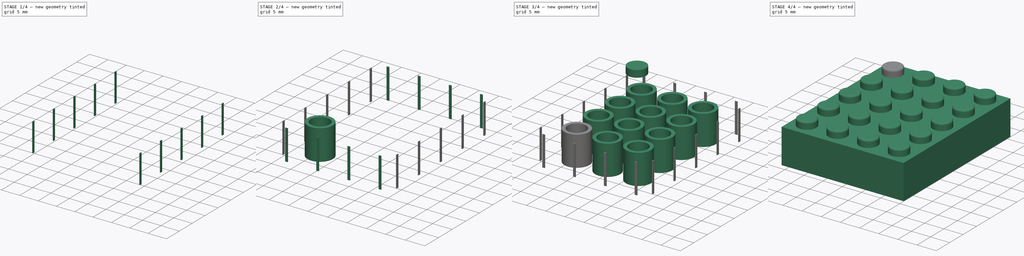
[diagram: build sequence overview — one tinted view per stage of 4, left to right]
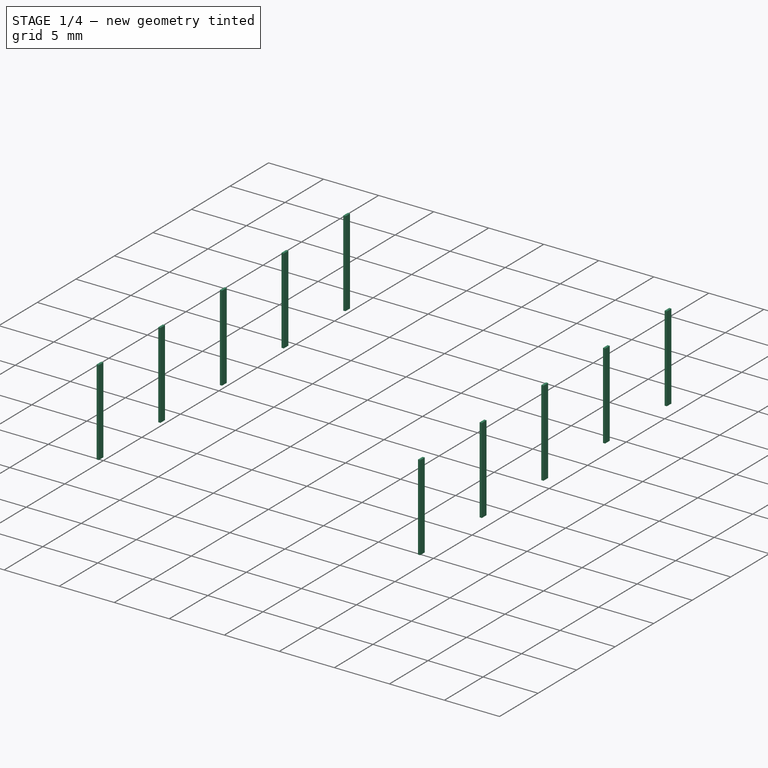
[diagram: stage 1 of 4 — iso view after this stage's code; geometry added in this stage tinted green]
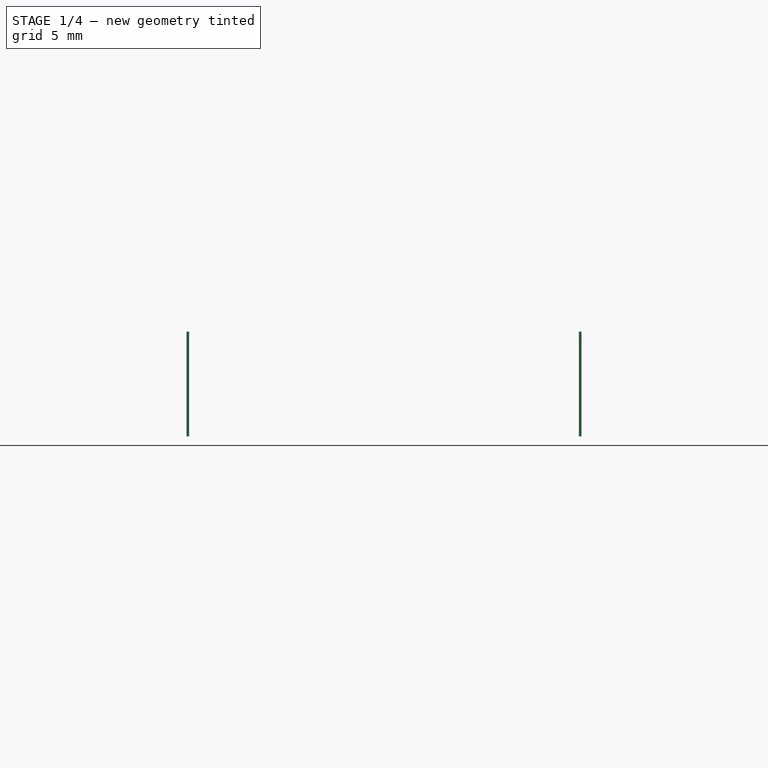
[diagram: stage 1 of 4 — front view after this stage's code; geometry added in this stage tinted green]
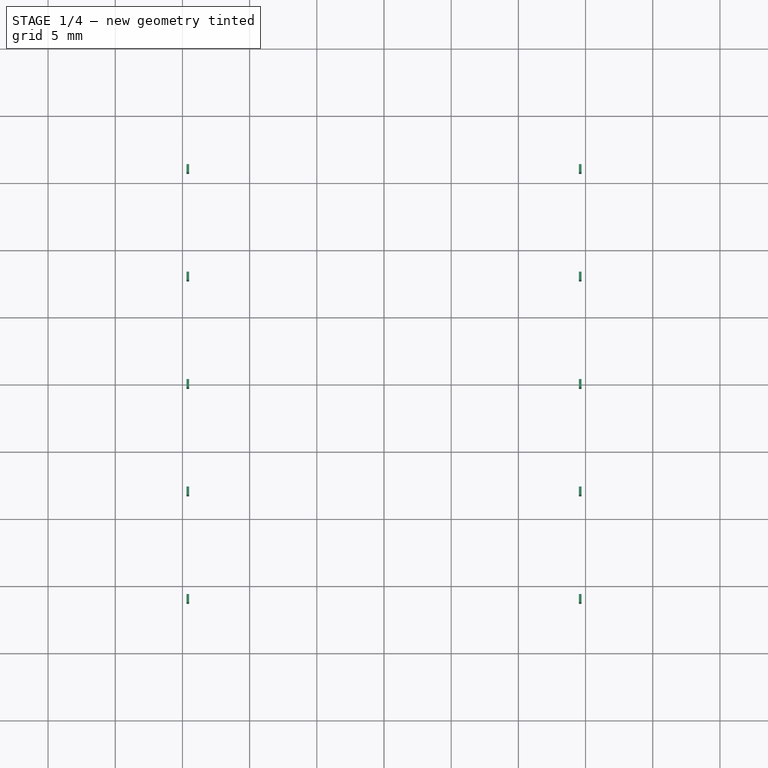
[diagram: stage 1 of 4 — top view after this stage's code; geometry added in this stage tinted green]
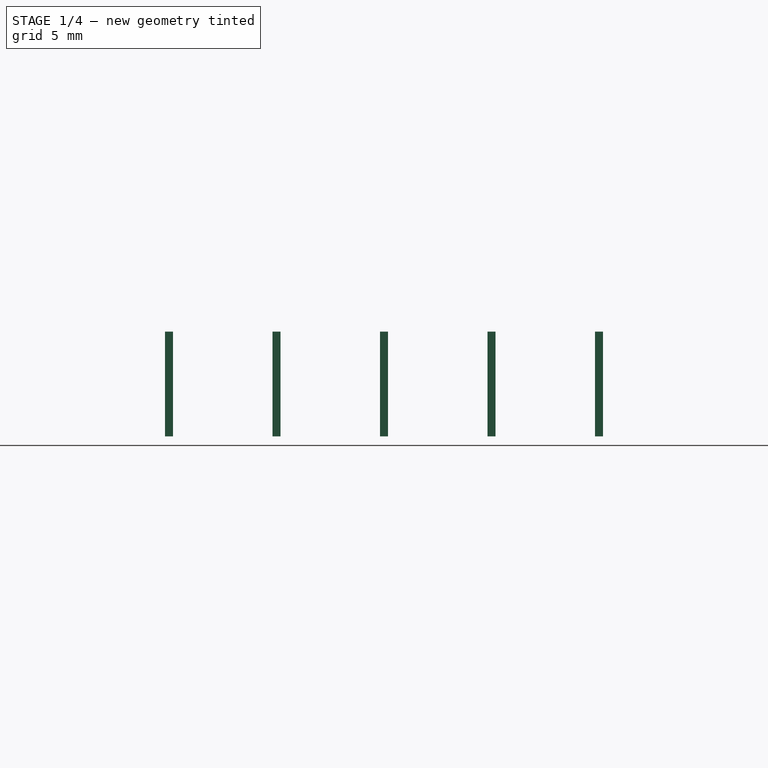
[diagram: stage 1 of 4 — right view after this stage's code; geometry added in this stage tinted green]
FCSTD DOCUMENT  (FreeCAD 0.21RUnknown)
Label: parametric_brick
License: All rights reserved
LicenseURL: http://en.wikipedia.org/wiki/All_rights_reserved
objects: Part::FeaturePython×12, Sketcher::SketchObject×5, Part::Extrusion×5, Spreadsheet::Sheet×1, Part::Thickness×1, Part::Fillet×1, Part::Compound×1
note: 25 computed .brp shape members not serialized (recipe doc carries the construction recipe); baked Part::Feature solids carry a one-line shape summary decoded from their .brp

FEATURE [Sketcher::SketchObject] Sketch
  FullyConstrained = true
  expr: Constraints[10] = Spreadsheet.Length
  expr: Constraints[11] = Spreadsheet.Width
  sketch-geometry (5):
    g0: LineSegment StartX=-15.9 StartY=19.9 StartZ=0 EndX=-15.9 EndY=-19.9 EndZ=0
    g1: LineSegment StartX=-15.9 StartY=-19.9 StartZ=0 EndX=15.9 EndY=-19.9 EndZ=0
    g2: LineSegment StartX=15.9 StartY=-19.9 StartZ=0 EndX=15.9 EndY=19.9 EndZ=0
    g3: LineSegment StartX=15.9 StartY=19.9 StartZ=0 EndX=-15.9 EndY=19.9 EndZ=0
    g4: GeomPoint X=0 Y=0 Z=0
  constraints (12):
    c: Coincident(g0,g1)
    c: Coincident(g1,g2)
    c: Coincident(g2,g3)
    c: Coincident(g3,g0)
    c: Horizontal(g1)
    c: Horizontal(g3)
    c: Vertical(g0)
    c: Vertical(g2)
    c: Symmetric(g1,g0,g4)
    c: Coincident(g4,g-1)
    c: DistanceX(g3,g3) = 31.8
    c: DistanceY(g2,g2) = 39.8
FEATURE [Spreadsheet::Sheet] Spreadsheet
  cells = A1='LengthUnits; B1(LengthUnits)=4; C1='Length; D1(Length)==LengthUnits * HorizonSpacing - LengthAdjustment; A2='HeightUnits; B2(HeightUnits)=3; C2='Height; D2(Height)==HeightUnits * VerticalSpacing; A3='WidthUnits; B3(WidthUnits)=5; C3='Width; D3(Width)==WidthUnits * HorizonSpacing - LengthAdjustment; A4='HorizonSpacing; B4(HorizonSpacing)=8; C4='StudPlacement; D4(StudPlacement)=3.9; A5='VerticalSpacing; B5(VerticalSpacing)=3; C5='StudDiameter; D5(StudDiameter)=4.8; A6='LengthAdjustment; B6(LengthAdjustment)=0.2; C6='StudHeight; D6(StudHeight)=1.8; A7='Wall; B7(Wall)=1.2; C7='TubeInner; D7(TubeInner)=4.8; A8='NubWidth; B8(NubWidth)=0.6; C8='TubeOuter; D8(TubeOuter)=6.5; A9='NubHeight; B9(NubHeight)=0.2; C9='TubePlacement; D9(TubePlacement)=7.9; A10='NubCenterToTopLeft; B10(NubCenterToTopLeft)=3.9; B12='Width; C12='Length; A13='2x2; B13=2; C13=2; A14='2x3; B14=2; C14=3; A15='3x3; B15=3; C15=3
FEATURE [Part::Extrusion] Extrude
  Base = -> Sketch
  Dir = (0,0,1)
  DirMode = 2
  FaceMakerClass = Part::FaceMakerBullseye
  LengthFwd = 9
  LengthRev = 0
  Solid = true
  Symmetric = false
  expr: LengthFwd = Spreadsheet.Height
FEATURE [Part::Thickness] Thickness
  Faces = -> Extrude [Face5]
  Intersection = false
  Join = 0
  Mode = 0
  SelfIntersection = false
  Value = -1.2
  expr: Value = -Spreadsheet.Wall
FEATURE [Sketcher::SketchObject] Sketch004
  ExternalGeometry = -> [Thickness]
  FullyConstrained = true
  MapMode = 5
  Placement = pos=(0,0,7.8) rot=(1,0,0;3.14159rad)
  Support = -> [Thickness]
  expr: Constraints[10] = Spreadsheet.Wall
  expr: Constraints[11] = Spreadsheet.NubHeight
  expr: Constraints[12] = Spreadsheet.NubWidth
  expr: Constraints[25] = Spreadsheet.Wall
  expr: Constraints[9] = Spreadsheet.NubCenterToTopLeft
  sketch-geometry (10):
    g0: LineSegment StartX=-14.7 StartY=16.3 StartZ=0 EndX=-14.7 EndY=15.7 EndZ=0
    g1: LineSegment StartX=-14.7 StartY=15.7 StartZ=0 EndX=-14.5 EndY=15.7 EndZ=0
    g2: LineSegment StartX=-14.5 StartY=15.7 StartZ=0 EndX=-14.5 EndY=16.3 EndZ=0
    g3: LineSegment StartX=-14.5 StartY=16.3 StartZ=0 EndX=-14.7 EndY=16.3 EndZ=0
    g4: GeomPoint X=-14.6 Y=16 Z=0
    g5: LineSegment StartX=14.5 StartY=16.3 StartZ=0 EndX=14.5 EndY=15.7 EndZ=0
    g6: LineSegment StartX=14.5 StartY=15.7 StartZ=0 EndX=14.7 EndY=15.7 EndZ=0
    g7: LineSegment StartX=14.7 StartY=15.7 StartZ=0 EndX=14.7 EndY=16.3 EndZ=0
    g8: LineSegment StartX=14.7 StartY=16.3 StartZ=0 EndX=14.5 EndY=16.3 EndZ=0
    g9: GeomPoint X=14.6 Y=16 Z=0
  constraints (26):
    c: Coincident(g0,g1)
    c: Coincident(g1,g2)
    c: Coincident(g2,g3)
    c: Coincident(g3,g0)
    c: Horizontal(g1)
    c: Horizontal(g3)
    c: Vertical(g0)
    c: Vertical(g2)
    c: Symmetric(g1,g0,g4)
    c: DistanceY(g4,g-3) = 3.9
    c: DistanceX(g-3,g0) = 1.2
    c: DistanceX(g3,g3) = 0.2
    c: DistanceY(g2,g2) = 0.6
    c: Coincident(g5,g6)
    c: Coincident(g6,g7)
    c: Coincident(g7,g8)
    c: Coincident(g8,g5)
    c: Horizontal(g6)
    c: Horizontal(g8)
    c: Vertical(g5)
    c: Vertical(g7)
    c: Symmetric(g6,g5,g9)
    c: Equal(g2,g5)
    c: Equal(g3,g8)
    c: Horizontal(g2,g5)
    c: DistanceX(g7,g-4) = 1.2
FEATURE [Part::Extrusion] Extrude004  label="SideNubExtrude"
  Base = -> Sketch004
  Dir = (0,0,-7.8)
  DirLink = -> Thickness [Edge19]
  DirMode = 1
  FaceMakerClass = Part::FaceMakerBullseye
  LengthFwd = 0
  LengthRev = 0
  Solid = true
  Symmetric = false
FEATURE [Part::FeaturePython] LinearArray005  # WARN: FeaturePython — macro-defined, semantics opaque (R4)
  Alignment = 0
  CellStart = A1
  Count = 5
  Dir = (0,1,0)
  DirIsDriven = true
  DistributionLaw = 0
  DrivenProperty = 1
  EndInclusive = true
  ExposePlacement = false
  GeneratorMode = 0
  MarkerShape = 1
  MarkerSize = 0
  NumElements = 5
  OrientMode = 1
  Point = (0,0,0)
  PointIsDriven = true
  Reverse = false
  SpanEnd = 32
  SpanStart = 0
  Step = 8
  Type = lattice2LinearArray.LinearArray
  VSGVersion = 1
  Values = 0.0 | 7.999999999999999 | 15.999999999999998 | 23.999999999999996 | 31.999999999999996
  ValuesSource = 2
  isLattice = 1
  expr: Count = Spreadsheet.WidthUnits
  expr: SpanEnd = Spreadsheet.Width - Spreadsheet.NubCenterToTopLeft * 2
FEATURE [Part::FeaturePython] Populate005  label="Populate LinearArray005 with SideNubExtrude"  # WARN: FeaturePython — macro-defined, semantics opaque (R4)
  Copying = 0
  ExposePlacement = false
  MarkerShape = 1
  MarkerSize = 0
  NumElements = 0
  Object = -> Extrude004
  OutputCompounding = 1
  PlacementsTo = -> LinearArray005
  Referencing = 1
  Type = lattice2PopulateCopies.LatticePopulateCopies
  isLattice = 0
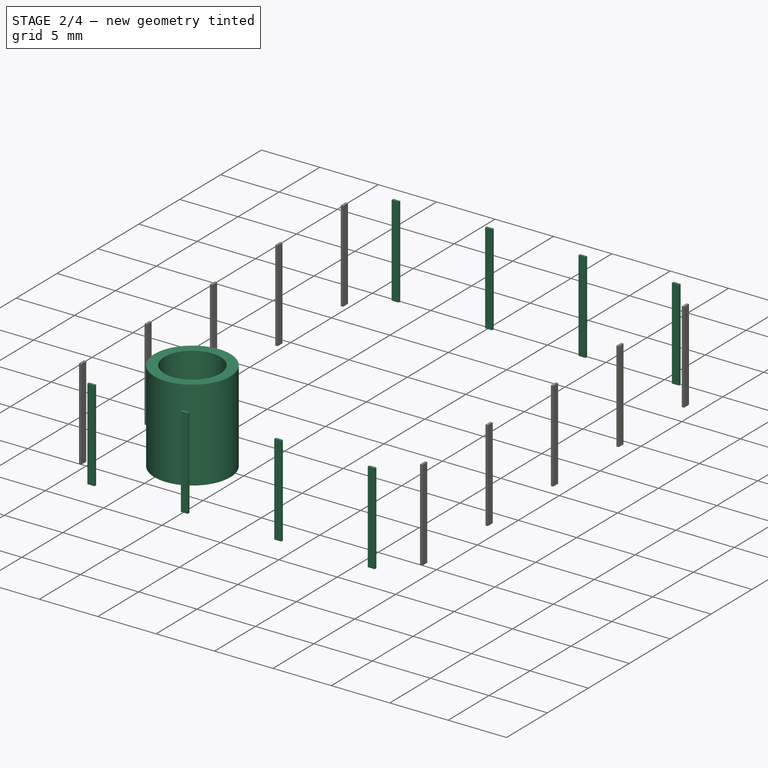
[diagram: stage 2 of 4 — iso view after this stage's code; geometry added in this stage tinted green]
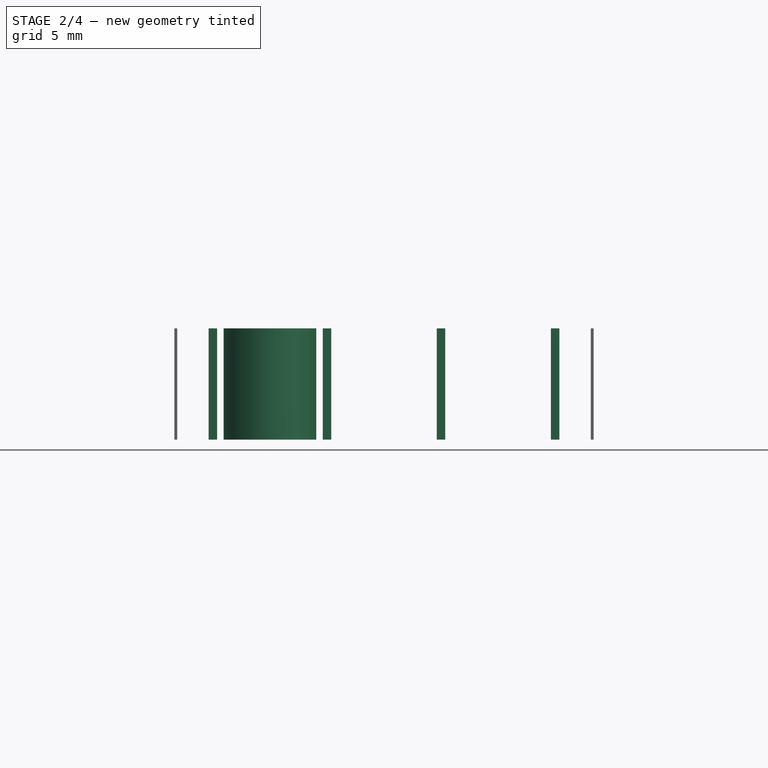
[diagram: stage 2 of 4 — front view after this stage's code; geometry added in this stage tinted green]
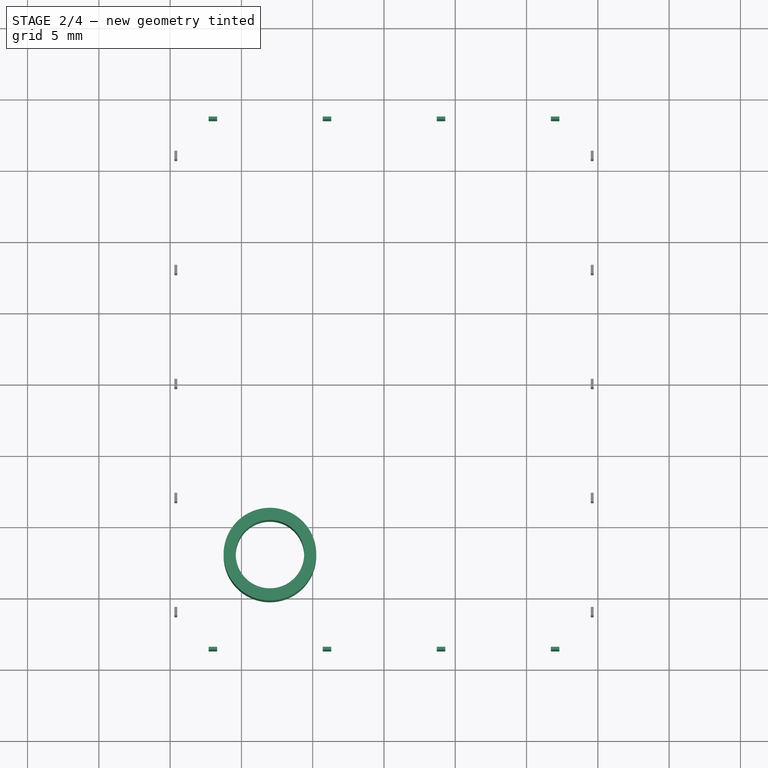
[diagram: stage 2 of 4 — top view after this stage's code; geometry added in this stage tinted green]
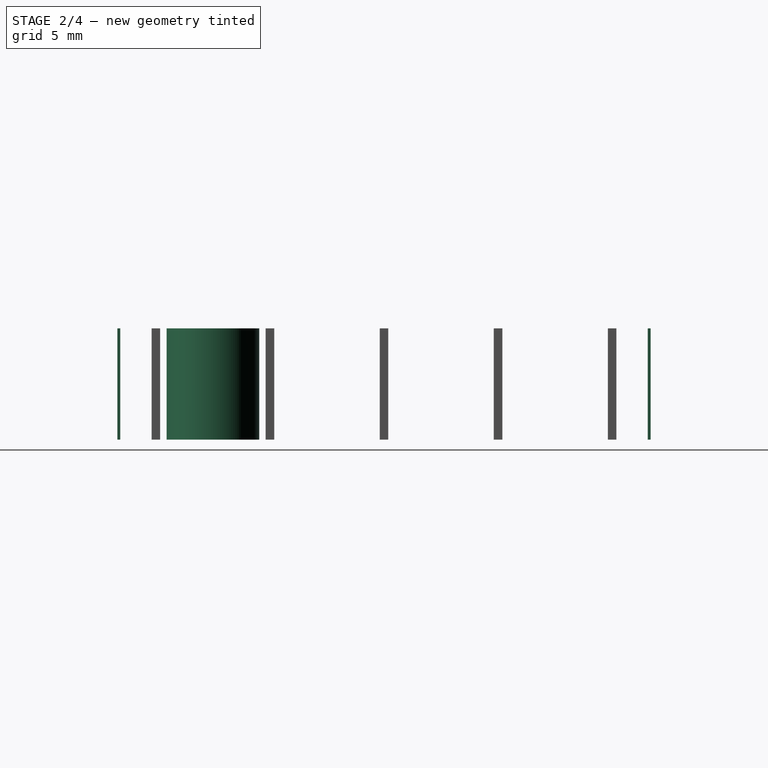
[diagram: stage 2 of 4 — right view after this stage's code; geometry added in this stage tinted green]
FEATURE [Sketcher::SketchObject] Sketch002
  ExternalGeometry = -> [Thickness]
  FullyConstrained = true
  MapMode = 5
  Placement = pos=(0,0,7.8) rot=(1,0,0;3.14159rad)
  Support = -> [Thickness]
  expr: Constraints[0] = Spreadsheet.TubeInner
  expr: Constraints[1] = Spreadsheet.TubeOuter
  expr: Constraints[2] = Spreadsheet.TubePlacement
  expr: Constraints[3] = Spreadsheet.TubePlacement
  sketch-geometry (2):
    g0: Circle CenterX=-8 CenterY=12 CenterZ=0 NormalX=0 NormalY=0 NormalZ=1 AngleXU=0 Radius=3.25
    g1: Circle CenterX=-8 CenterY=12 CenterZ=0 NormalX=0 NormalY=0 NormalZ=1 AngleXU=0 Radius=2.4
  constraints (5):
    c: Diameter(g1) = 4.8
    c: Diameter(g0) = 6.5
    c: DistanceX(g-3,g0) = 7.9
    c: DistanceY(g0,g-3) = 7.9
    c: Coincident(g0,g1)
FEATURE [Part::Extrusion] Extrude002  label="TubeExtrude"
  Base = -> Sketch002
  Dir = (0,0,-7.8)
  DirLink = -> Thickness [Edge19]
  DirMode = 1
  FaceMakerClass = Part::FaceMakerBullseye
  LengthFwd = 0
  LengthRev = 0
  Solid = true
  Symmetric = false
FEATURE [Sketcher::SketchObject] Sketch003
  ExternalGeometry = -> [Thickness]
  FullyConstrained = true
  MapMode = 5
  Placement = pos=(0,0,7.8) rot=(1,0,0;3.14159rad)
  Support = -> [Thickness]
  expr: Constraints[10] = Spreadsheet.NubWidth
  expr: Constraints[11] = Spreadsheet.NubHeight
  expr: Constraints[24] = Spreadsheet.Wall
  expr: Constraints[25] = Spreadsheet.NubCenterToTopLeft
  expr: Constraints[9] = Spreadsheet.Wall
  sketch-geometry (10):
    g0: LineSegment StartX=-12.3 StartY=18.7 StartZ=0 EndX=-12.3 EndY=18.5 EndZ=0
    g1: LineSegment StartX=-12.3 StartY=18.5 StartZ=0 EndX=-11.7 EndY=18.5 EndZ=0
    g2: LineSegment StartX=-11.7 StartY=18.5 StartZ=0 EndX=-11.7 EndY=18.7 EndZ=0
    g3: LineSegment StartX=-11.7 StartY=18.7 StartZ=0 EndX=-12.3 EndY=18.7 EndZ=0
    g4: GeomPoint X=-12 Y=18.6 Z=0
    g5: LineSegment StartX=-12.3 StartY=-18.5 StartZ=0 EndX=-12.3 EndY=-18.7 EndZ=0
    g6: LineSegment StartX=-12.3 StartY=-18.7 StartZ=0 EndX=-11.7 EndY=-18.7 EndZ=0
    g7: LineSegment StartX=-11.7 StartY=-18.7 StartZ=0 EndX=-11.7 EndY=-18.5 EndZ=0
    g8: LineSegment StartX=-11.7 StartY=-18.5 StartZ=0 EndX=-12.3 EndY=-18.5 EndZ=0
    g9: GeomPoint X=-12 Y=-18.6 Z=0
  constraints (26):
    c: Coincident(g0,g1)
    c: Coincident(g1,g2)
    c: Coincident(g2,g3)
    c: Coincident(g3,g0)
    c: Horizontal(g1)
    c: Horizontal(g3)
    c: Vertical(g0)
    c: Vertical(g2)
    c: Symmetric(g1,g0,g4)
    c: DistanceY(g0,g-3) = 1.2
    c: DistanceX(g1,g1) = 0.6
    c: DistanceY(g2,g2) = 0.2
    c: Coincident(g5,g6)
    c: Coincident(g6,g7)
    c: Coincident(g7,g8)
    c: Coincident(g8,g5)
    c: Horizontal(g6)
    c: Horizontal(g8)
    c: Vertical(g5)
    c: Vertical(g7)
    c: Symmetric(g6,g5,g9)
    c: Equal(g6,g1)
    c: Equal(g7,g2)
    c: Vertical(g5,g0)
    c: DistanceY(g-4,g5) = 1.2
    c: DistanceX(g-3,g4) = 3.9
FEATURE [Part::Extrusion] Extrude003
  Base = -> Sketch003
  Dir = (0,0,-7.8)
  DirLink = -> Thickness [Edge19]
  DirMode = 1
  FaceMakerClass = Part::FaceMakerBullseye
  LengthFwd = 0
  LengthRev = 0
  Solid = true
  Symmetric = false
FEATURE [Part::FeaturePython] LinearArray004  # WARN: FeaturePython — macro-defined, semantics opaque (R4)
  Alignment = 0
  CellStart = A1
  Count = 4
  Dir = (1,0,0)
  DirIsDriven = true
  DistributionLaw = 0
  DrivenProperty = 1
  EndInclusive = true
  ExposePlacement = false
  GeneratorMode = 0
  MarkerShape = 1
  MarkerSize = 0
  NumElements = 4
  OrientMode = 1
  Point = (0,0,0)
  PointIsDriven = true
  Reverse = false
  SpanEnd = 24
  SpanStart = 0
  Step = 8
  Type = lattice2LinearArray.LinearArray
  VSGVersion = 1
  Values = 0.0 | 8.0 | 16.0 | 24.0
  ValuesSource = 2
  isLattice = 1
  expr: Count = Spreadsheet.LengthUnits
  expr: SpanEnd = Spreadsheet.Length - Spreadsheet.NubCenterToTopLeft * 2
FEATURE [Part::FeaturePython] Populate004  label="Populate LinearArray004 with Extrude003"  # WARN: FeaturePython — macro-defined, semantics opaque (R4)
  Copying = 0
  ExposePlacement = false
  MarkerShape = 1
  MarkerSize = 0
  NumElements = 0
  Object = -> Extrude003
  OutputCompounding = 1
  PlacementsTo = -> LinearArray004
  Referencing = 1
  Type = lattice2PopulateCopies.LatticePopulateCopies
  isLattice = 0
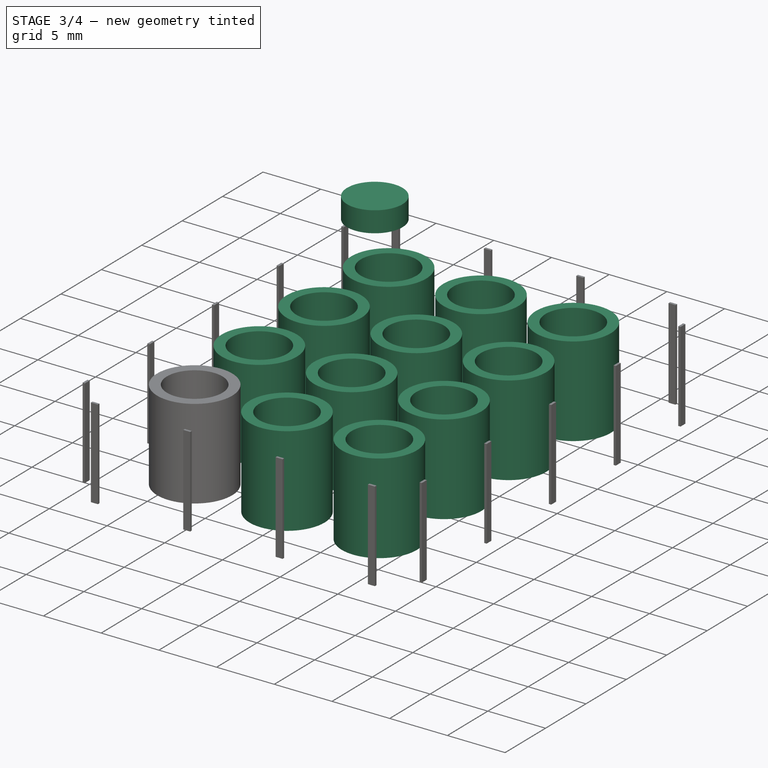
[diagram: stage 3 of 4 — iso view after this stage's code; geometry added in this stage tinted green]
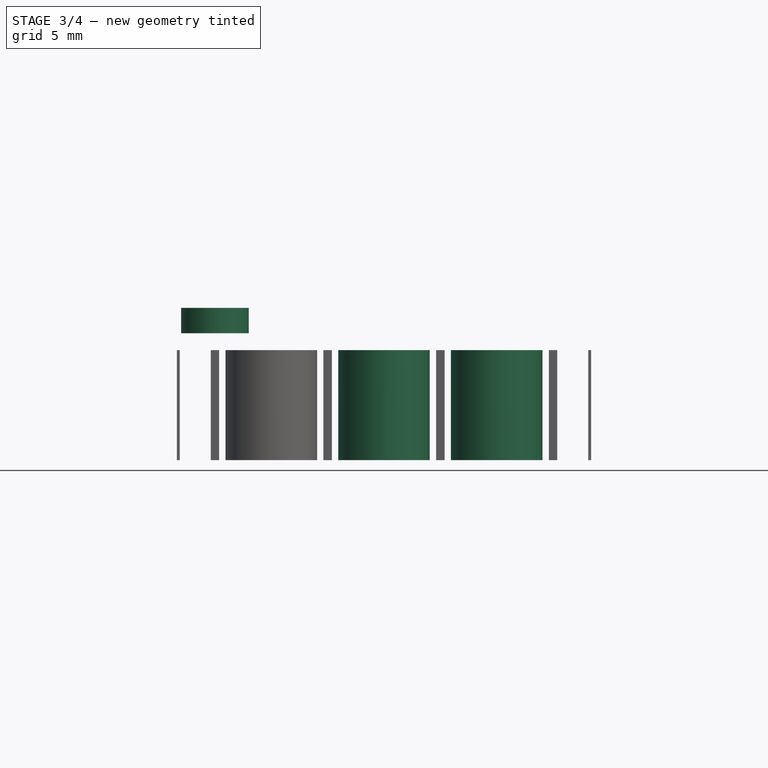
[diagram: stage 3 of 4 — front view after this stage's code; geometry added in this stage tinted green]
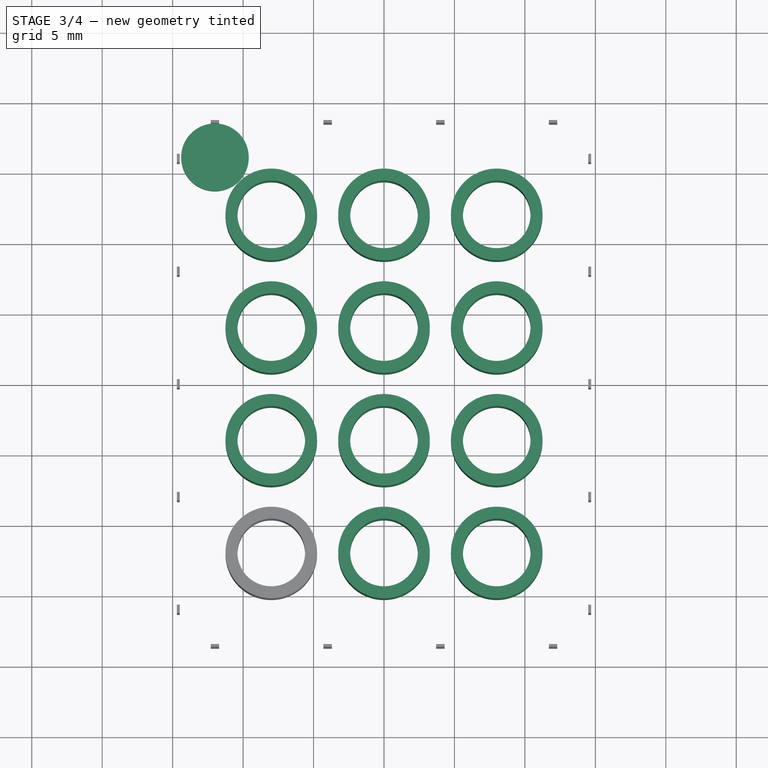
[diagram: stage 3 of 4 — top view after this stage's code; geometry added in this stage tinted green]
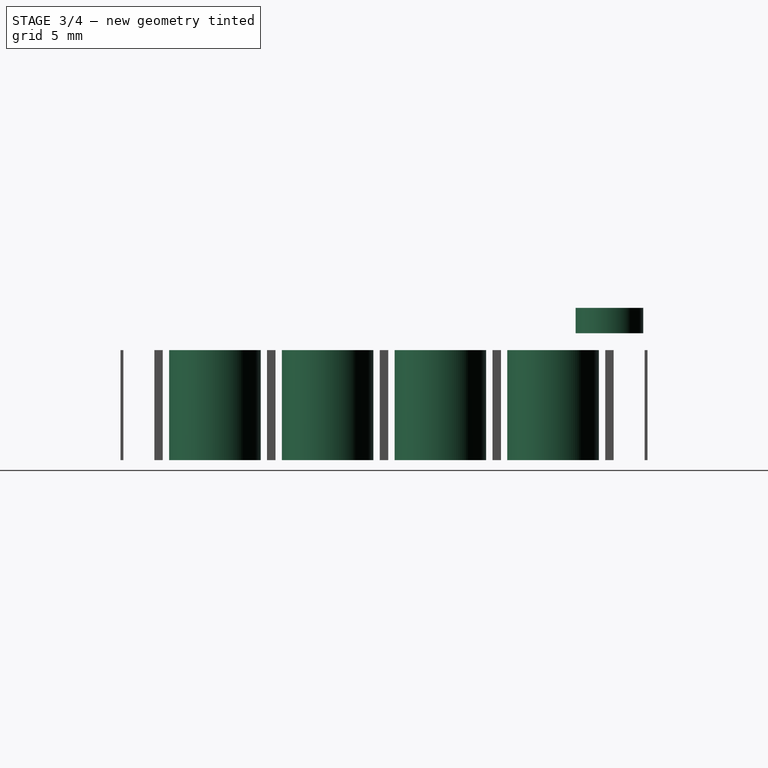
[diagram: stage 3 of 4 — right view after this stage's code; geometry added in this stage tinted green]
FEATURE [Sketcher::SketchObject] Sketch001
  ExternalGeometry = -> [Thickness]
  FullyConstrained = true
  MapMode = 5
  Placement = pos=(0,0,9) rot=(0,0,1;0rad)
  Support = -> [Thickness]
  expr: Constraints[0] = Spreadsheet.StudPlacement
  expr: Constraints[1] = Spreadsheet.StudPlacement
  expr: Constraints[2] = Spreadsheet.StudDiameter
  sketch-geometry (1):
    g0: Circle CenterX=-12 CenterY=16 CenterZ=0 NormalX=0 NormalY=0 NormalZ=1 AngleXU=0 Radius=2.4
  constraints (3):
    c: DistanceX(g-3,g0) = 3.9
    c: DistanceY(g0,g-3) = 3.9
    c: Diameter(g0) = 4.8
FEATURE [Part::Extrusion] Extrude001
  Base = -> Sketch001
  Dir = (0,0,1)
  DirMode = 2
  FaceMakerClass = Part::FaceMakerBullseye
  LengthFwd = 1.8
  LengthRev = 0
  Solid = true
  Symmetric = false
  expr: LengthFwd = Spreadsheet.StudHeight
FEATURE [Part::FeaturePython] LinearArray002  # WARN: FeaturePython — macro-defined, semantics opaque (R4)
  Alignment = 0
  CellStart = A1
  Count = 4
  Dir = (0,1,0)
  DirIsDriven = true
  DistributionLaw = 0
  DrivenProperty = 1
  EndInclusive = true
  ExposePlacement = false
  GeneratorMode = 0
  MarkerShape = 1
  MarkerSize = 2
  NumElements = 4
  OrientMode = 1
  Point = (0,0,0)
  PointIsDriven = true
  Reverse = false
  SpanEnd = 24
  SpanStart = 0
  Step = 8
  Type = lattice2LinearArray.LinearArray
  VSGVersion = 1
  Values = 0.0 | 8.0 | 16.0 | 24.0
  ValuesSource = 2
  isLattice = 1
  expr: Count = Spreadsheet.WidthUnits - 1
  expr: SpanEnd = Spreadsheet.HorizonSpacing * (Spreadsheet.WidthUnits - 2)
FEATURE [Part::FeaturePython] Populate002  label="Populate LinearArray002 with TubeExtrude"  # WARN: FeaturePython — macro-defined, semantics opaque (R4)
  Copying = 0
  ExposePlacement = false
  MarkerShape = 1
  MarkerSize = 0
  NumElements = 0
  Object = -> Extrude002
  OutputCompounding = 1
  PlacementsTo = -> LinearArray002
  Referencing = 1
  Type = lattice2PopulateCopies.LatticePopulateCopies
  isLattice = 0
FEATURE [Part::FeaturePython] LinearArray003  # WARN: FeaturePython — macro-defined, semantics opaque (R4)
  Alignment = 0
  CellStart = A1
  Count = 3
  Dir = (1,0,0)
  DirIsDriven = true
  DistributionLaw = 0
  DrivenProperty = 1
  EndInclusive = true
  ExposePlacement = false
  GeneratorMode = 0
  MarkerShape = 1
  MarkerSize = 0
  NumElements = 3
  OrientMode = 1
  Point = (0,0,0)
  PointIsDriven = true
  Reverse = false
  SpanEnd = 16
  SpanStart = 0
  Step = 8
  Type = lattice2LinearArray.LinearArray
  VSGVersion = 1
  Values = 0.0 | 8.0 | 16.0
  ValuesSource = 2
  isLattice = 1
  expr: Count = Spreadsheet.LengthUnits - 1
  expr: SpanEnd = Spreadsheet.HorizonSpacing * (Spreadsheet.LengthUnits - 2)
FEATURE [Part::FeaturePython] Populate003  label="Populate LinearArray003 with Populate LinearArray002 with TubeExtrude"  # WARN: FeaturePython — macro-defined, semantics opaque (R4)
  Copying = 0
  ExposePlacement = false
  MarkerShape = 1
  MarkerSize = 0
  NumElements = 0
  Object = -> Populate002
  OutputCompounding = 1
  PlacementsTo = -> LinearArray003
  Referencing = 1
  Type = lattice2PopulateCopies.LatticePopulateCopies
  isLattice = 0
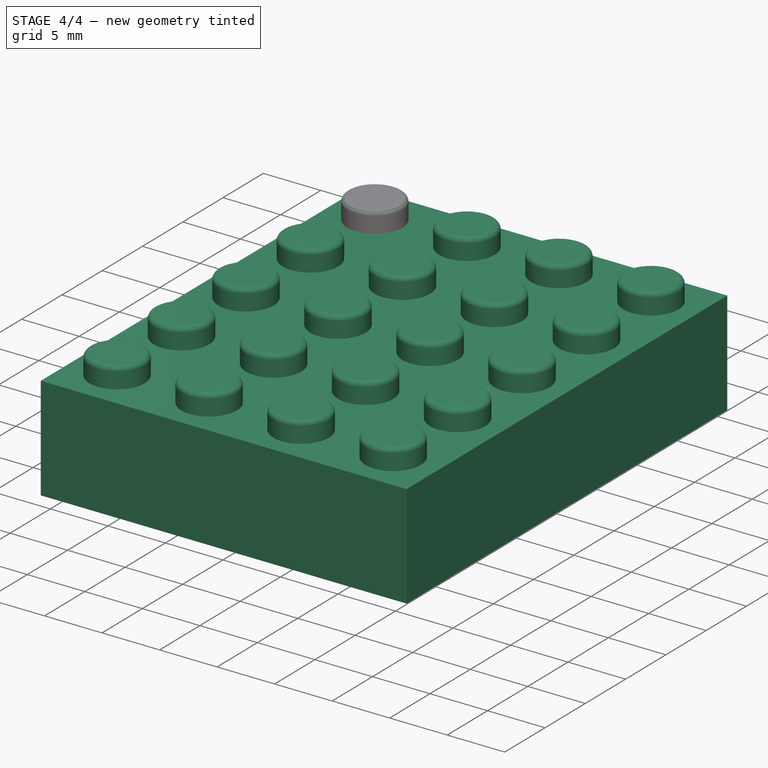
[diagram: stage 4 of 4 — iso view after this stage's code; geometry added in this stage tinted green]
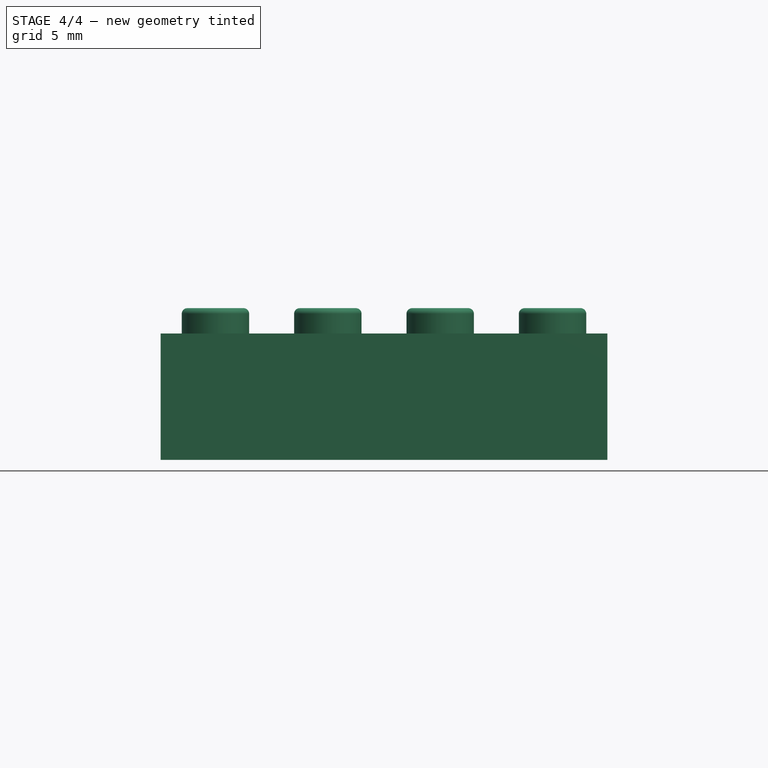
[diagram: stage 4 of 4 — front view after this stage's code; geometry added in this stage tinted green]
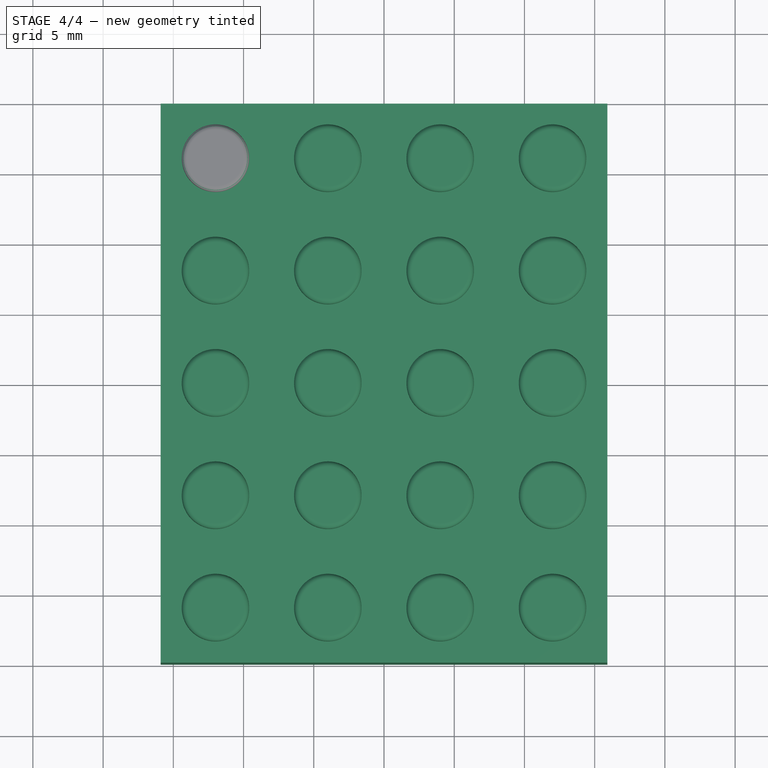
[diagram: stage 4 of 4 — top view after this stage's code; geometry added in this stage tinted green]
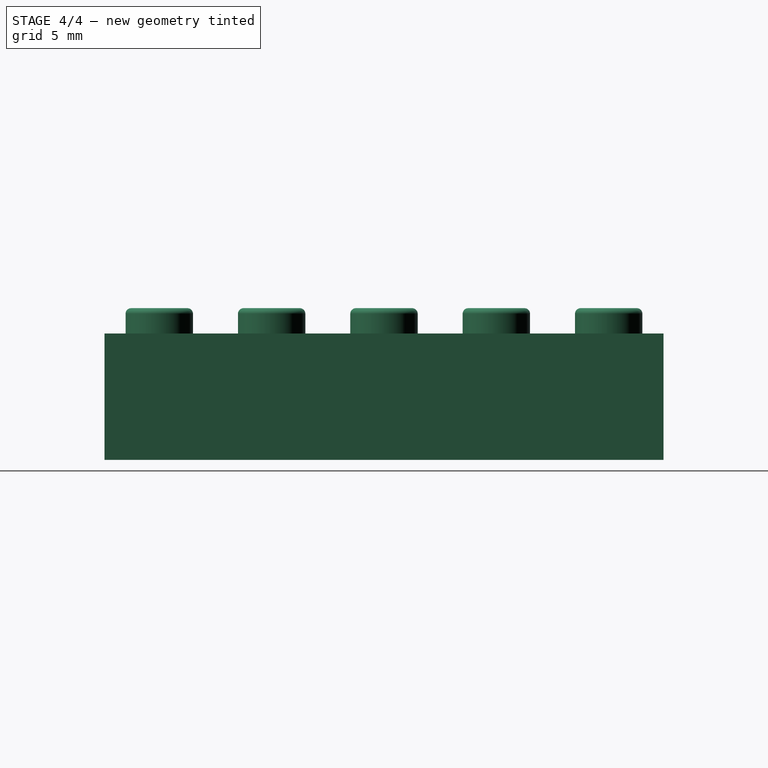
[diagram: stage 4 of 4 — right view after this stage's code; geometry added in this stage tinted green]
FEATURE [Part::Fillet] Fillet
  Base = -> Extrude001
  Edges = 1 edges r=0.4: [Edge3]
FEATURE [Part::FeaturePython] LinearArray  # WARN: FeaturePython — macro-defined, semantics opaque (R4)
  Alignment = 0
  CellStart = A1
  Count = 4
  Dir = (1,0,0)
  DirIsDriven = true
  DistributionLaw = 0
  DrivenProperty = 1
  EndInclusive = true
  ExposePlacement = false
  GeneratorMode = 0
  MarkerShape = 1
  MarkerSize = 0
  NumElements = 4
  OrientMode = 1
  Point = (0,0,0)
  PointIsDriven = true
  Reverse = false
  SpanEnd = 24
  SpanStart = 0
  Step = 8
  Type = lattice2LinearArray.LinearArray
  VSGVersion = 1
  Values = 0.0 | 8.0 | 16.0 | 24.0
  ValuesSource = 2
  isLattice = 1
  expr: Count = Spreadsheet.LengthUnits
  expr: SpanEnd = Spreadsheet.HorizonSpacing * (Spreadsheet.LengthUnits - 1)
FEATURE [Part::FeaturePython] Populate  label="Populate LinearArray with Fillet"  # WARN: FeaturePython — macro-defined, semantics opaque (R4)
  Copying = 0
  ExposePlacement = false
  MarkerShape = 1
  MarkerSize = 0
  NumElements = 0
  Object = -> Fillet
  OutputCompounding = 1
  PlacementsTo = -> LinearArray
  Referencing = 1
  Type = lattice2PopulateCopies.LatticePopulateCopies
  isLattice = 0
FEATURE [Part::FeaturePython] LinearArray001  # WARN: FeaturePython — macro-defined, semantics opaque (R4)
  Alignment = 0
  CellStart = A1
  Count = 5
  Dir = (0,-1,0)
  DirIsDriven = true
  DistributionLaw = 0
  DrivenProperty = 1
  EndInclusive = true
  ExposePlacement = false
  GeneratorMode = 0
  MarkerShape = 1
  MarkerSize = 0
  NumElements = 5
  OrientMode = 1
  Point = (0,0,0)
  PointIsDriven = true
  Reverse = false
  SpanEnd = 32
  SpanStart = 0
  Step = 8
  Type = lattice2LinearArray.LinearArray
  VSGVersion = 1
  Values = 0.0 | 8.0 | 16.0 | 24.0 | 32.0
  ValuesSource = 2
  isLattice = 1
  expr: Count = Spreadsheet.WidthUnits
  expr: SpanEnd = Spreadsheet.HorizonSpacing * (Spreadsheet.WidthUnits - 1)
FEATURE [Part::FeaturePython] Populate001  label="Populate LinearArray001 with Populate LinearArray with Fillet"  # WARN: FeaturePython — macro-defined, semantics opaque (R4)
  Copying = 0
  ExposePlacement = false
  MarkerShape = 1
  MarkerSize = 0
  NumElements = 0
  Object = -> Populate
  OutputCompounding = 1
  PlacementsTo = -> LinearArray001
  Referencing = 1
  Type = lattice2PopulateCopies.LatticePopulateCopies
  isLattice = 0
FEATURE [Part::Compound] Compound
  Links = -> [Thickness,Populate001,Populate003,Populate004,Populate005]
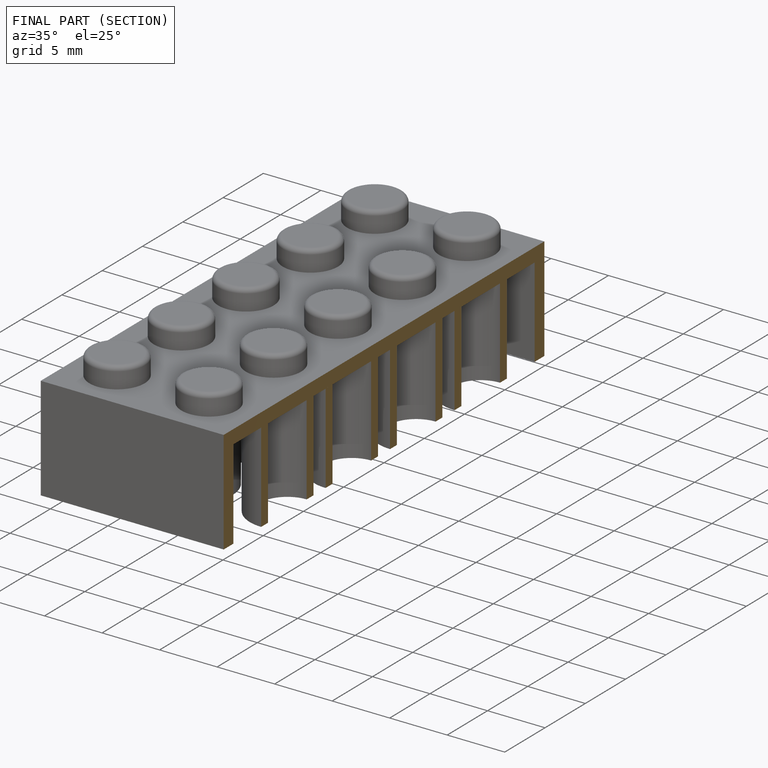
[diagram: finished part — half-section view (interior)]
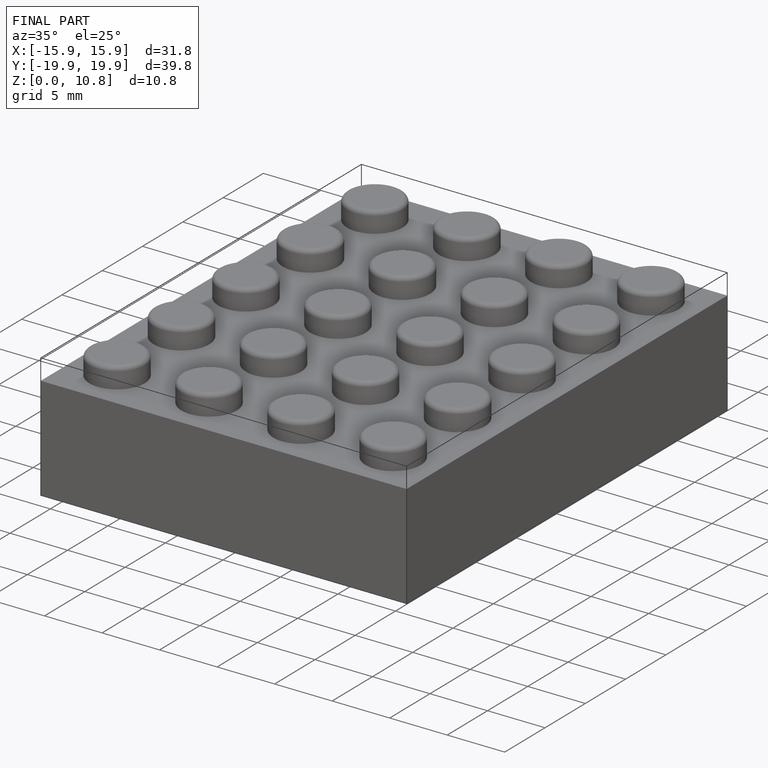
[diagram: finished part — iso view with bounding-box wireframe]
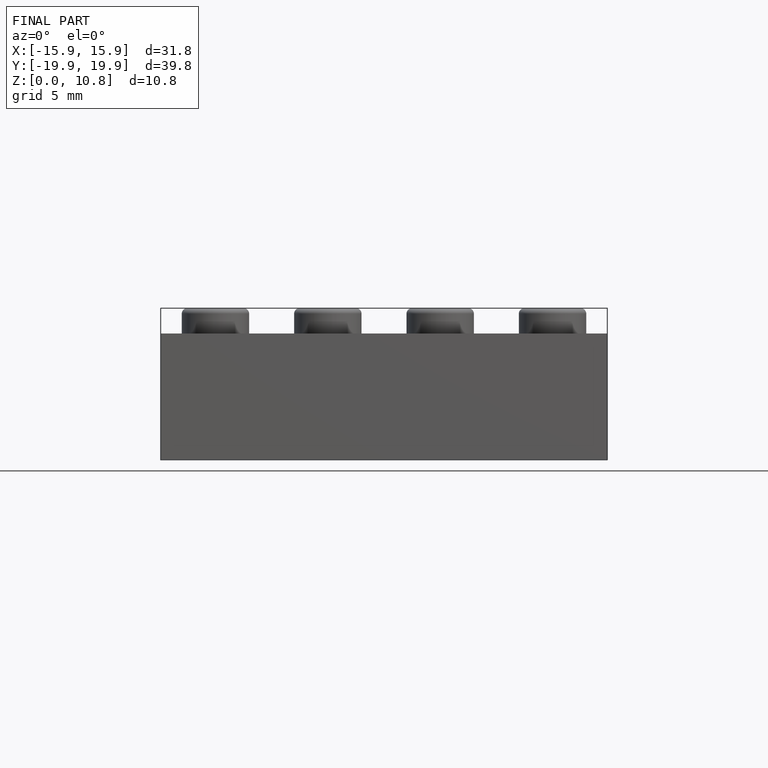
[diagram: finished part — front view with bounding-box wireframe]
